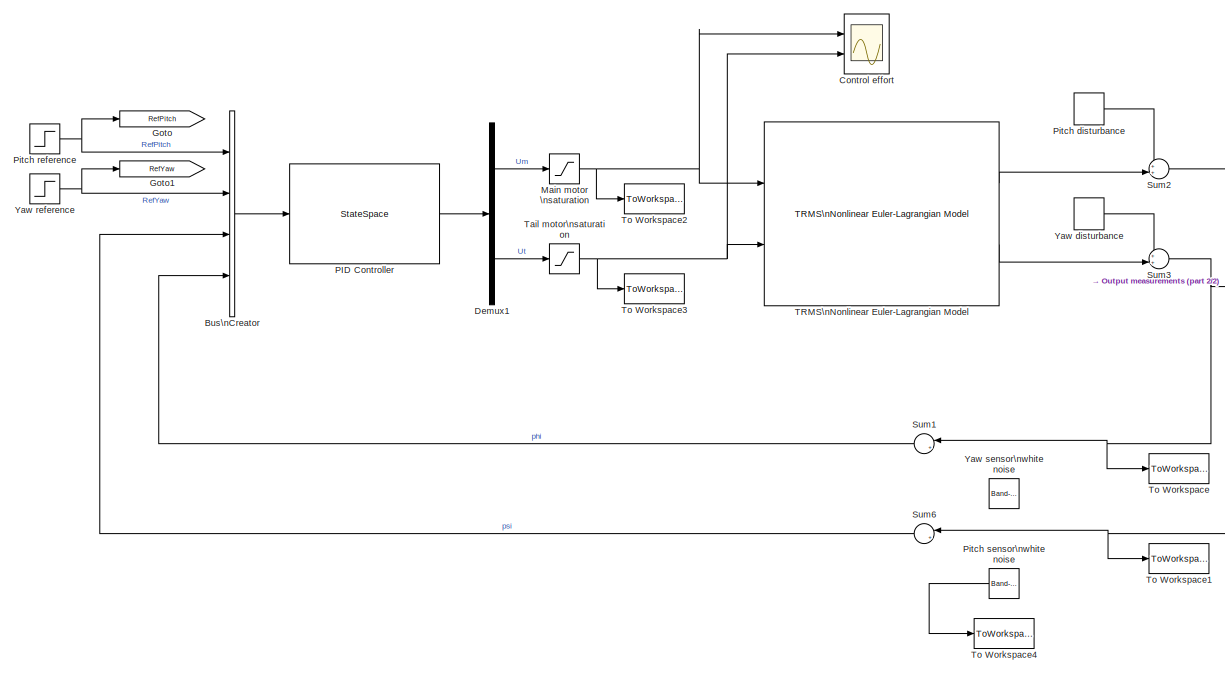
[diagram: root canvas - part 1/2, most of the canvas]
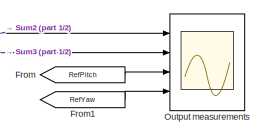
[diagram: root canvas - part 2/2, middle right region]
MODEL sim_DecouplingPID_R2012a
KIND model
BLOCK [BusCreator] Bus\nCreator
  DisplayOption = bar
  Inputs = 4
  Ports = [4, 1]
  SID = 122
BLOCK [Scope] Control effort
  DataFormat = StructureWithTime
  Decimation = 1
  Grid = on
  LimitDataPoints = off
  MaxDataPoints = 5000
  NumInputPorts = 2
  Ports = [2]
  SID = 145
  SampleInput = off
  SampleTime = -1
  SaveName = ScopeData1
  SaveToWorkspace = off
  ShowLegends = on
  TickLabels = OneTimeTick
  TimeRange = auto
  YMax = 3.125~5
  YMin = -3.125~-5
  ZoomMode = on
BLOCK [Demux] Demux1
  DisplayOption = bar
  Outputs = 2
  Ports = [1, 2]
  SID = 127
BLOCK [From] From
  GotoTag = RefPitch
  SID = 167
BLOCK [From] From1
  GotoTag = RefYaw
  SID = 168
BLOCK [Goto] Goto
  GotoTag = RefPitch
  SID = 164
BLOCK [Goto] Goto1
  GotoTag = RefYaw
  SID = 166
BLOCK [Saturate] Main motor \nsaturation
  InputPortMap = u0
  LowerLimit = -2.5
  Ports = [1, 1]
  SID = 132
  UpperLimit = 2.5
BLOCK [Scope] Output measurements
  DataFormat = StructureWithTime
  Decimation = 1
  Grid = on
  LimitDataPoints = off
  MaxDataPoints = 5000
  NumInputPorts = 4
  Ports = [4]
  SID = 169
  SampleInput = off
  SampleTime = -1
  SaveName = ScopeData1
  SaveToWorkspace = off
  ShowLegends = on
  TickLabels = OneTimeTick
  TimeRange = auto
  YMax = 0.37256~5~5~5
  YMin = -1.40106~-5~-5~-5
  ZoomMode = on
BLOCK [StateSpace] PID Controller
  A = KPID.A
  B = KPID.B
  C = KPID.C
  D = KPID.D
  Ports = [1, 1]
  SID = 162
  X0 = 0
BLOCK [DiscretePulseGenerator] Pitch disturbance
  Amplitude = 0.1
  Period = 100
  PhaseDelay = 80
  Ports = [0, 1]
  PulseType = Time based
  PulseWidth = 0.1
  SID = 138
BLOCK [Step] Pitch reference
  After = 0
  SID = 128
  SampleTime = 0
  Time = 100
BLOCK [Reference] Pitch sensor\nwhite noise  REF=simulink/Sources/Band-Limited\nWhite Noise
  Cov = [0.000000001]
  Ports = [0, 1]
  SID = 161
  SourceBlock = simulink/Sources/Band-Limited\nWhite Noise
  SourceType = Band-Limited White Noise.
  Ts = 0.001
  VectorParams1D = on
  seed = [23341]
BLOCK [Sum] Sum1
  IconShape = round
  InputSameDT = off
  Inputs = |++
  OutDataTypeStr = Inherit: Inherit via internal rule
  Ports = [2, 1]
  SID = 136
  SaturateOnIntegerOverflow = off
BLOCK [Sum] Sum2
  IconShape = round
  InputSameDT = off
  Inputs = ++|
  OutDataTypeStr = Inherit: Inherit via internal rule
  Ports = [2, 1]
  SID = 140
  SaturateOnIntegerOverflow = off
BLOCK [Sum] Sum3
  IconShape = round
  InputSameDT = off
  Inputs = ++|
  OutDataTypeStr = Inherit: Inherit via internal rule
  Ports = [2, 1]
  SID = 141
  SaturateOnIntegerOverflow = off
BLOCK [Sum] Sum6
  IconShape = round
  InputSameDT = off
  Inputs = |++
  OutDataTypeStr = Inherit: Inherit via internal rule
  Ports = [2, 1]
  SID = 135
  SaturateOnIntegerOverflow = off
BLOCK [Reference] TRMS\nNonlinear Euler-Lagrangian Model  REF=lib_Lagrangian_Model_Nonlinear/TRMS\nNonlinear Euler-Lagrangian Model
  Phi_dot_zero = 0
  Phi_zero = 0
  Ports = [2, 2]
  Psi_dot_zero = 0
  Psi_zero = 0
  SID = 124
  SourceBlock = lib_Lagrangian_Model_Nonlinear/TRMS\nNonlinear Euler-Lagrangian Model
  SourceType = Physical model
  Wm_zero = 0
  Wt_zero = 0
BLOCK [Saturate] Tail motor\nsaturation
  InputPortMap = u0
  LowerLimit = -2.5
  Ports = [1, 1]
  SID = 133
  UpperLimit = 2.5
BLOCK [ToWorkspace] To Workspace
  FixptAsFi = on
  MaxDataPoints = inf
  Ports = [1]
  SID = 155
  SampleTime = -1
  SaveFormat = Timeseries
  VariableName = sim_phi
BLOCK [ToWorkspace] To Workspace1
  FixptAsFi = on
  MaxDataPoints = inf
  Ports = [1]
  SID = 156
  SampleTime = -1
  SaveFormat = Timeseries
  VariableName = sim_psi
BLOCK [ToWorkspace] To Workspace2
  FixptAsFi = on
  MaxDataPoints = inf
  Ports = [1]
  SID = 157
  SampleTime = -1
  SaveFormat = Timeseries
  VariableName = sim_um
BLOCK [ToWorkspace] To Workspace3
  FixptAsFi = on
  MaxDataPoints = inf
  Ports = [1]
  SID = 158
  SampleTime = -1
  SaveFormat = Timeseries
  VariableName = sim_ut
BLOCK [ToWorkspace] To Workspace4
  FixptAsFi = on
  MaxDataPoints = inf
  Ports = [1]
  SID = 159
  SampleTime = -1
  SaveFormat = Timeseries
  VariableName = sim_noise
BLOCK [DiscretePulseGenerator] Yaw disturbance
  Amplitude = 0.1
  Period = 100
  PhaseDelay = 120
  Ports = [0, 1]
  PulseType = Time based
  PulseWidth = 0.1
  SID = 160
BLOCK [Step] Yaw reference
  After = 0
  SID = 129
  SampleTime = 0
  Time = 140
BLOCK [Reference] Yaw sensor\nwhite noise  REF=simulink/Sources/Band-Limited\nWhite Noise
  Cov = [0.000000001]
  Ports = [0, 1]
  SID = 134
  SourceBlock = simulink/Sources/Band-Limited\nWhite Noise
  SourceType = Band-Limited White Noise.
  Ts = 0.001
  VectorParams1D = on
  seed = [23341]
LINE Bus\nCreator:1 -> PID Controller:1
LINE Demux1:1 -> Main motor \nsaturation:1
LINE Demux1:2 -> Tail motor\nsaturation:1
LINE From1:1 -> Output measurements:4
LINE From:1 -> Output measurements:3
NET Main motor \nsaturation:1 -> Control effort:1, TRMS\nNonlinear Euler-Lagrangian Model:1, To Workspace2:1
LINE PID Controller:1 -> Demux1:1
LINE Pitch disturbance:1 -> Sum2:1
NET Pitch reference:1 -> Bus\nCreator:1, Goto:1
LINE Pitch sensor\nwhite noise:1 -> To Workspace4:1
LINE Sum1:1 -> Bus\nCreator:4
NET Sum2:1 -> Output measurements:1, Sum6:1, To Workspace1:1
NET Sum3:1 -> Output measurements:2, Sum1:1, To Workspace:1
LINE Sum6:1 -> Bus\nCreator:3
LINE TRMS\nNonlinear Euler-Lagrangian Model:1 -> Sum2:2
LINE TRMS\nNonlinear Euler-Lagrangian Model:2 -> Sum3:2
NET Tail motor\nsaturation:1 -> Control effort:2, TRMS\nNonlinear Euler-Lagrangian Model:2, To Workspace3:1
LINE Yaw disturbance:1 -> Sum3:1
NET Yaw reference:1 -> Bus\nCreator:2, Goto1:1
note: NET lines group one-source signal fan-out (src -> all destinations, sorted); 1:1 wires keep LINE
